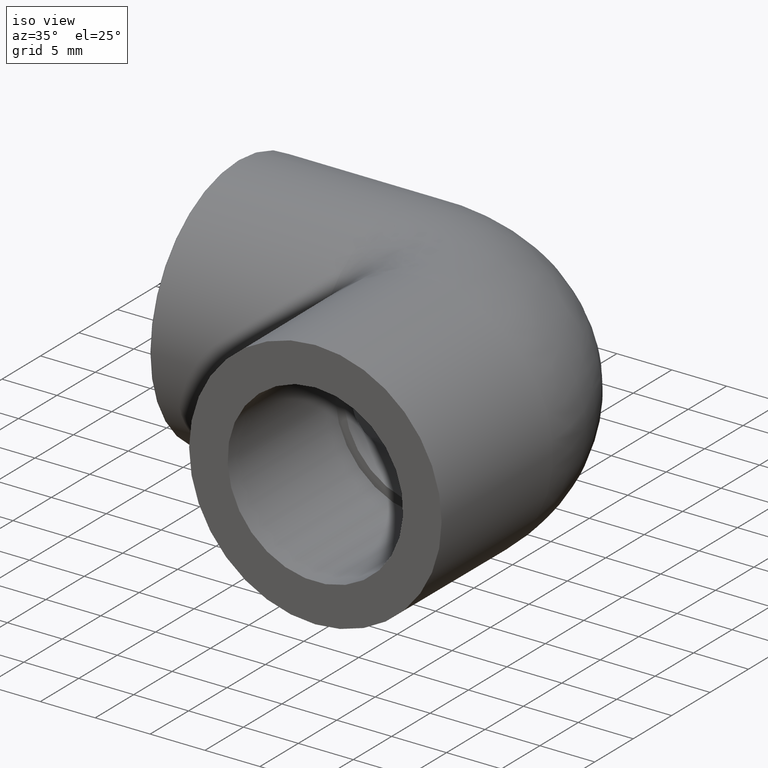
[diagram: clean part render]
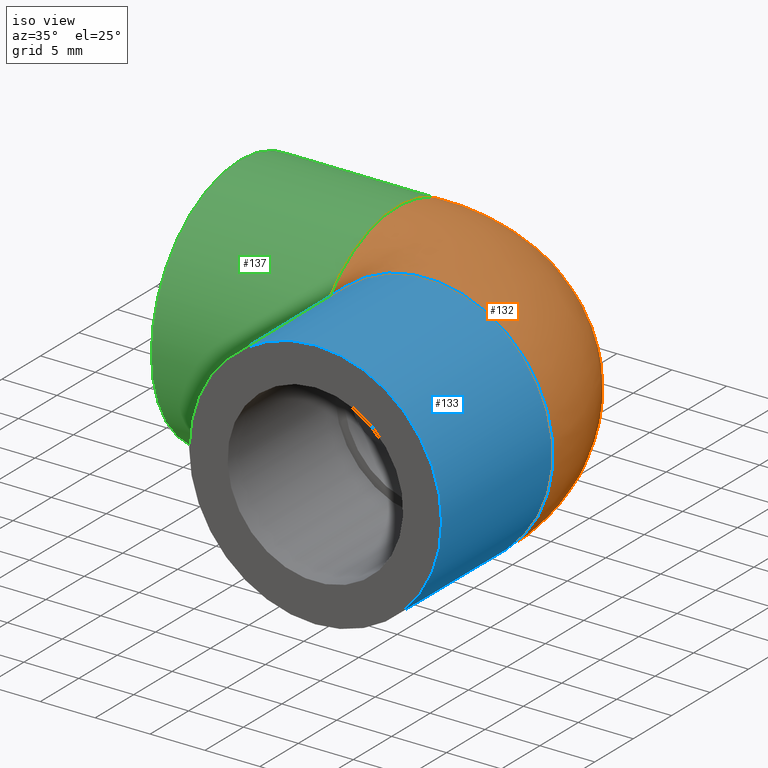
[diagram: same view with three faces highlighted in distinct colors, each labeled with its STEP entity id]
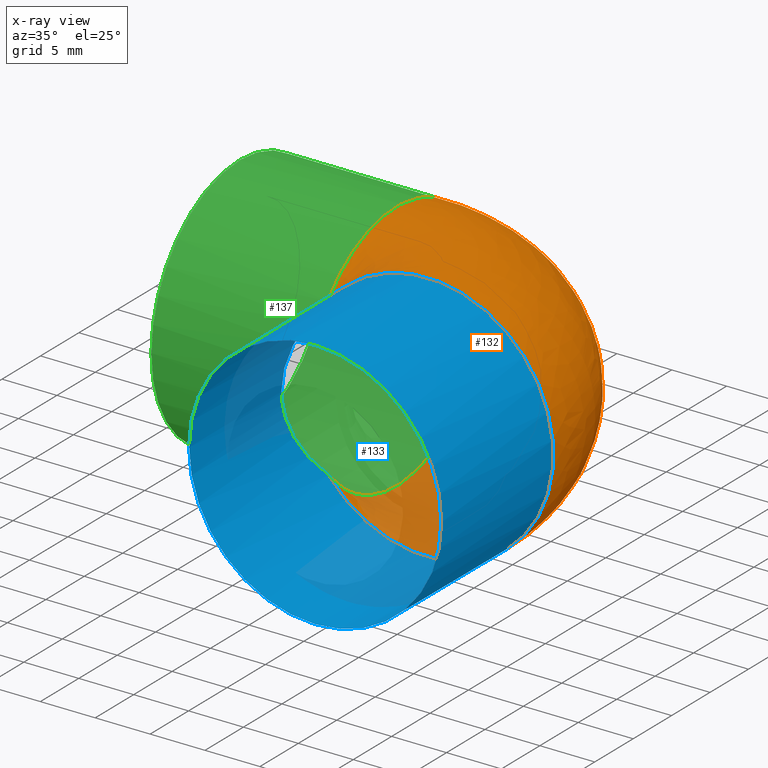
[diagram: x-ray of the same camera — body ghosted, the three highlighted faces saturated]
A machine part, iso view with three faces highlighted in distinct colors.
The next image is the same camera in x-ray (body ghosted, the three faces saturated) — at least one of them is partly hidden behind the body in this view.
Their STEP definitions:

[orange] entity #132 — the highlighted face is a freeform B-spline surface patch.
#16=(
BOUNDED_SURFACE()
B_SPLINE_SURFACE(2,2,((#226,#227,#228),(#229,#230,#231),(#232,#233,#234),
(#235,#236,#237),(#238,#239,#240),(#241,#242,#243),(#244,#245,#246),(#247,
#248,#249),(#250,#251,#252)),.UNSPECIFIED.,.F.,.F.,.F.)
B_SPLINE_SURFACE_WITH_KNOTS((3,2,2,2,3),(3,3),(-2.46964175709388,-1.23482087854694,
0.,1.23482087854694,2.46964175709388),(1.5707963267949,3.14159265358979),
 .UNSPECIFIED.)
GEOMETRIC_REPRESENTATION_ITEM()
RATIONAL_B_SPLINE_SURFACE(((1.,0.707106781186548,1.),(0.815380351951741,
0.57656097611135,0.815380351951741),(1.,0.707106781186548,1.),(0.815380351951742,
0.57656097611135,0.815380351951742),(1.,0.707106781186548,1.),(0.815380351951742,
0.57656097611135,0.815380351951742),(1.,0.707106781186548,1.),(0.815380351951741,
0.57656097611135,0.815380351951741),(1.,0.707106781186548,1.)))
REPRESENTATION_ITEM('')
SURFACE()
);
#40=FACE_OUTER_BOUND('',#56,.T.);
#56=EDGE_LOOP('',(#111,#112));
#73=CIRCLE('',#151,11.5);
#74=CIRCLE('',#152,11.5);
#84=VERTEX_POINT('',#253);
#85=VERTEX_POINT('',#254);
#95=EDGE_CURVE('',#84,#85,#73,.T.);
#96=EDGE_CURVE('',#85,#84,#74,.T.);
#111=ORIENTED_EDGE('',*,*,#95,.T.);
#112=ORIENTED_EDGE('',*,*,#96,.T.);
#132=ADVANCED_FACE('',(#40),#16,.F.);
#151=AXIS2_PLACEMENT_3D('',#255,#186,#187);
#152=AXIS2_PLACEMENT_3D('',#256,#188,#189);
#186=DIRECTION('center_axis',(1.,0.,0.));
#187=DIRECTION('ref_axis',(0.,0.,-1.));
#188=DIRECTION('center_axis',(6.12323399573677E-17,1.,0.));
#189=DIRECTION('ref_axis',(0.,0.,-1.));
#226=CARTESIAN_POINT('Ctrl Pts',(-8.99999999999999,-8.99999999999999,7.15891053163817));
#227=CARTESIAN_POINT('Ctrl Pts',(-8.99999999999999,-8.99999999999999,7.15891053163817));
#228=CARTESIAN_POINT('Ctrl Pts',(-8.99999999999999,-8.99999999999999,7.15891053163817));
#229=CARTESIAN_POINT('Ctrl Pts',(-8.99999999999999,-3.91712455594844,13.5489720911861));
#230=CARTESIAN_POINT('Ctrl Pts',(-3.91712455594844,-3.91712455594844,13.5489720911861));
#231=CARTESIAN_POINT('Ctrl Pts',(-3.91712455594844,-8.99999999999999,13.5489720911861));
#232=CARTESIAN_POINT('Ctrl Pts',(-8.99999999999999,3.79143772202577,10.8570253753042));
#233=CARTESIAN_POINT('Ctrl Pts',(3.79143772202577,3.79143772202577,10.8570253753042));
#234=CARTESIAN_POINT('Ctrl Pts',(3.79143772202577,-8.99999999999999,10.8570253753042));
#235=CARTESIAN_POINT('Ctrl Pts',(-8.99999999999999,11.5,8.16507865942235));
#236=CARTESIAN_POINT('Ctrl Pts',(11.5,11.5,8.16507865942235));
#237=CARTESIAN_POINT('Ctrl Pts',(11.5,-8.99999999999999,8.16507865942235));
#238=CARTESIAN_POINT('Ctrl Pts',(-8.99999999999999,11.5,0.));
#239=CARTESIAN_POINT('Ctrl Pts',(11.5,11.5,0.));
#240=CARTESIAN_POINT('Ctrl Pts',(11.5,-8.99999999999999,0.));
#241=CARTESIAN_POINT('Ctrl Pts',(-8.99999999999999,11.5,-8.16507865942235));
#242=CARTESIAN_POINT('Ctrl Pts',(11.5,11.5,-8.16507865942235));
#243=CARTESIAN_POINT('Ctrl Pts',(11.5,-8.99999999999999,-8.16507865942235));
#244=CARTESIAN_POINT('Ctrl Pts',(-8.99999999999999,3.79143772202577,-10.8570253753042));
#245=CARTESIAN_POINT('Ctrl Pts',(3.79143772202577,3.79143772202577,-10.8570253753042));
#246=CARTESIAN_POINT('Ctrl Pts',(3.79143772202577,-8.99999999999999,-10.8570253753042));
#247=CARTESIAN_POINT('Ctrl Pts',(-8.99999999999999,-3.91712455594844,-13.5489720911861));
#248=CARTESIAN_POINT('Ctrl Pts',(-3.91712455594844,-3.91712455594844,-13.5489720911861));
#249=CARTESIAN_POINT('Ctrl Pts',(-3.91712455594844,-8.99999999999999,-13.5489720911861));
#250=CARTESIAN_POINT('Ctrl Pts',(-8.99999999999999,-8.99999999999999,-7.15891053163817));
#251=CARTESIAN_POINT('Ctrl Pts',(-8.99999999999999,-8.99999999999999,-7.15891053163817));
#252=CARTESIAN_POINT('Ctrl Pts',(-8.99999999999999,-8.99999999999999,-7.15891053163817));
#253=CARTESIAN_POINT('',(-8.99999999999999,-8.99999999999999,-7.15891053163817));
#254=CARTESIAN_POINT('',(-8.99999999999999,-8.99999999999999,7.15891053163817));
#255=CARTESIAN_POINT('Origin',(-8.99999999999999,0.,0.));
#256=CARTESIAN_POINT('Origin',(-5.51091059616308E-16,-8.99999999999999,
0.));

[blue] entity #133 — the highlighted cylindrical surface (bore or boss wall) has radius 11.5 mm, axis along (0, 1, 0).
#15=ELLIPSE('',#154,16.2634559672906,11.5);
#23=CYLINDRICAL_SURFACE('',#153,11.5);
#30=FACE_BOUND('',#58,.T.);
#41=FACE_OUTER_BOUND('',#57,.T.);
#57=EDGE_LOOP('',(#113,#114));
#58=EDGE_LOOP('',(#115));
#74=CIRCLE('',#152,11.5);
#75=CIRCLE('',#155,11.5);
#84=VERTEX_POINT('',#253);
#85=VERTEX_POINT('',#254);
#86=VERTEX_POINT('',#259);
#96=EDGE_CURVE('',#85,#84,#74,.T.);
#97=EDGE_CURVE('',#84,#85,#15,.T.);
#98=EDGE_CURVE('',#86,#86,#75,.T.);
#113=ORIENTED_EDGE('',*,*,#97,.F.);
#114=ORIENTED_EDGE('',*,*,#96,.F.);
#115=ORIENTED_EDGE('',*,*,#98,.T.);
#133=ADVANCED_FACE('',(#41,#30),#23,.T.);
#152=AXIS2_PLACEMENT_3D('',#256,#188,#189);
#153=AXIS2_PLACEMENT_3D('',#257,#190,#191);
#154=AXIS2_PLACEMENT_3D('',#258,#192,#193);
#155=AXIS2_PLACEMENT_3D('',#260,#194,#195);
#188=DIRECTION('center_axis',(6.12323399573677E-17,1.,0.));
#189=DIRECTION('ref_axis',(0.,0.,-1.));
#190=DIRECTION('center_axis',(6.12323399573677E-17,1.,0.));
#191=DIRECTION('ref_axis',(-1.,6.12323399573677E-17,0.));
#192=DIRECTION('center_axis',(-0.707106781186548,0.707106781186548,0.));
#193=DIRECTION('ref_axis',(-0.707106781186547,-0.707106781186547,0.));
#194=DIRECTION('center_axis',(6.12323399573677E-17,1.,0.));
#195=DIRECTION('ref_axis',(0.,0.,-1.));
#253=CARTESIAN_POINT('',(-8.99999999999999,-8.99999999999999,-7.15891053163817));
#254=CARTESIAN_POINT('',(-8.99999999999999,-8.99999999999999,7.15891053163817));
#256=CARTESIAN_POINT('Origin',(-5.51091059616308E-16,-8.99999999999999,
0.));
#257=CARTESIAN_POINT('Origin',(-9.95025524307224E-16,-16.25,0.));
#258=CARTESIAN_POINT('Origin',(1.23259516440783E-31,2.22044604925031E-15,
0.));
#259=CARTESIAN_POINT('',(-11.5,-23.5,0.));
#260=CARTESIAN_POINT('Origin',(-1.43895998899814E-15,-23.5,0.));

[green] entity #137 — the highlighted cylindrical surface (bore or boss wall) has radius 11.5 mm, axis along (1, 0, 0).
#15=ELLIPSE('',#154,16.2634559672906,11.5);
#24=CYLINDRICAL_SURFACE('',#161,11.5);
#34=FACE_BOUND('',#66,.T.);
#45=FACE_OUTER_BOUND('',#65,.T.);
#65=EDGE_LOOP('',(#122,#123));
#66=EDGE_LOOP('',(#124));
#73=CIRCLE('',#151,11.5);
#77=CIRCLE('',#159,11.5);
#84=VERTEX_POINT('',#253);
#85=VERTEX_POINT('',#254);
#88=VERTEX_POINT('',#265);
#95=EDGE_CURVE('',#84,#85,#73,.T.);
#97=EDGE_CURVE('',#84,#85,#15,.T.);
#100=EDGE_CURVE('',#88,#88,#77,.T.);
#122=ORIENTED_EDGE('',*,*,#97,.T.);
#123=ORIENTED_EDGE('',*,*,#95,.F.);
#124=ORIENTED_EDGE('',*,*,#100,.F.);
#137=ADVANCED_FACE('',(#45,#34),#24,.T.);
#151=AXIS2_PLACEMENT_3D('',#255,#186,#187);
#154=AXIS2_PLACEMENT_3D('',#258,#192,#193);
#159=AXIS2_PLACEMENT_3D('',#266,#202,#203);
#161=AXIS2_PLACEMENT_3D('',#268,#206,#207);
#186=DIRECTION('center_axis',(1.,0.,0.));
#187=DIRECTION('ref_axis',(0.,0.,-1.));
#192=DIRECTION('center_axis',(-0.707106781186548,0.707106781186548,0.));
#193=DIRECTION('ref_axis',(-0.707106781186547,-0.707106781186547,0.));
#202=DIRECTION('center_axis',(-1.,0.,0.));
#203=DIRECTION('ref_axis',(0.,-1.,1.83697019872103E-16));
#206=DIRECTION('center_axis',(1.,0.,0.));
#207=DIRECTION('ref_axis',(0.,1.,0.));
#253=CARTESIAN_POINT('',(-8.99999999999999,-8.99999999999999,-7.15891053163817));
#254=CARTESIAN_POINT('',(-8.99999999999999,-8.99999999999999,7.15891053163817));
#255=CARTESIAN_POINT('Origin',(-8.99999999999999,0.,0.));
#258=CARTESIAN_POINT('Origin',(1.23259516440783E-31,2.22044604925031E-15,
0.));
#265=CARTESIAN_POINT('',(-23.34,11.5,-3.52085954754864E-15));
#266=CARTESIAN_POINT('Origin',(-23.34,0.,0.));
#268=CARTESIAN_POINT('Origin',(-16.25,0.,0.));